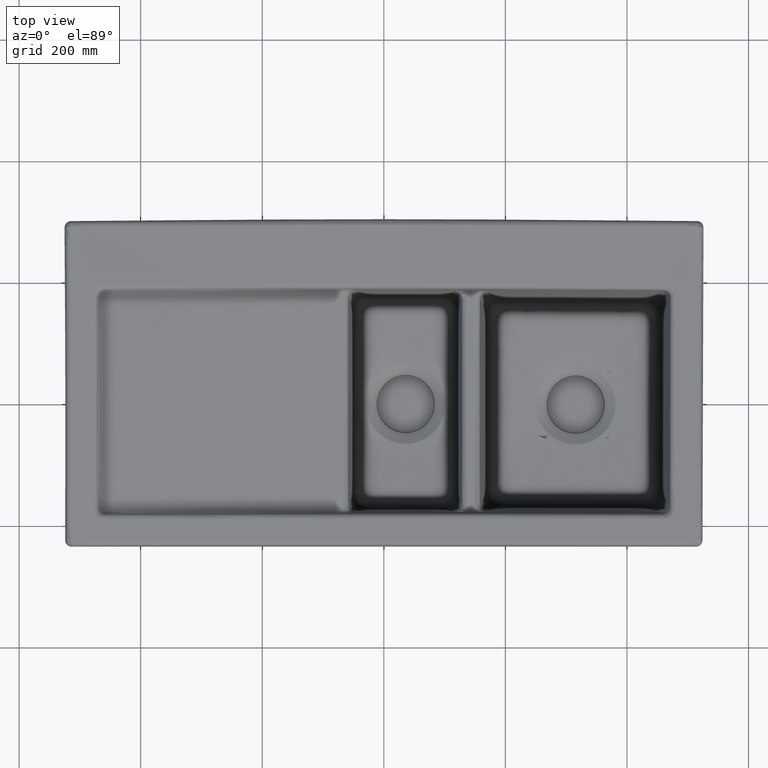
[diagram: clean part render]
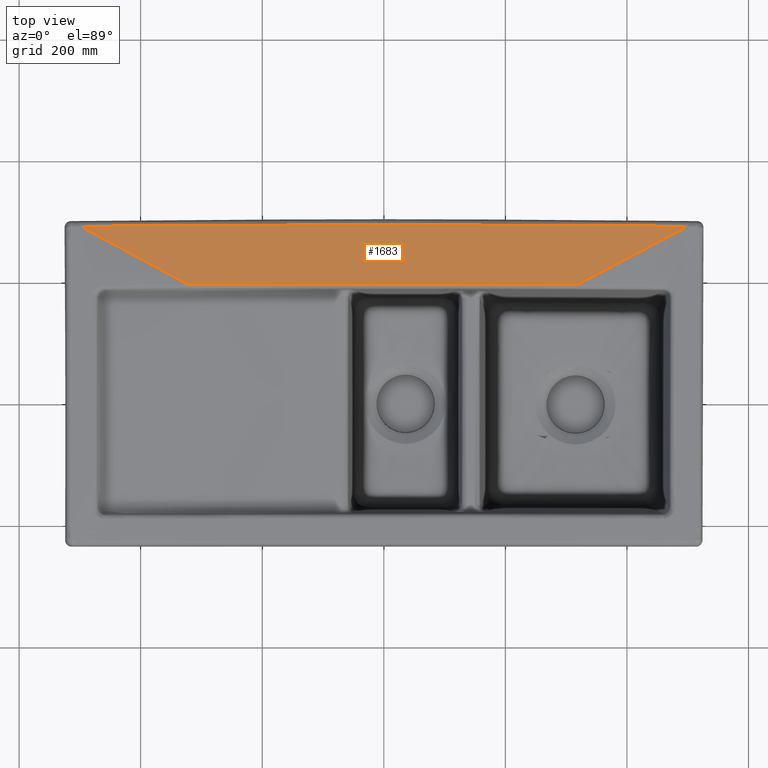
[diagram: same view with one face highlighted and labeled with its STEP entity id]
A machine part, top view. The second image highlights one B-rep face of the part: STEP entity #1683.
In plain terms, the highlighted face is a freeform B-spline surface patch.
Its self-contained STEP definition (entity closure, byte-faithful):
#233=B_SPLINE_SURFACE_WITH_KNOTS('',3,1,((#27506,#27507),(#27508,#27509),
(#27510,#27511),(#27512,#27513)),.UNSPECIFIED.,.F.,.F.,.F.,(4,4),(2,2),
(0.,1.),(0.,1.),.UNSPECIFIED.);
#1208=B_SPLINE_CURVE_WITH_KNOTS('',3,(#25962,#25963,#25964,#25965,#25966,
#25967,#25968,#25969,#25970,#25971,#25972,#25973,#25974,#25975),
 .UNSPECIFIED.,.F.,.F.,(4,2,2,1,1,2,2,4),(0.,0.249999999999994,0.374999999999992,
0.43749999999999,0.46874999999999,0.48437499999999,0.49999999999999,1.),
 .UNSPECIFIED.);
#1210=B_SPLINE_CURVE_WITH_KNOTS('',3,(#26025,#26026,#26027,#26028),
 .UNSPECIFIED.,.F.,.F.,(4,4),(0.,1.),.UNSPECIFIED.);
#1236=B_SPLINE_CURVE_WITH_KNOTS('',3,(#26708,#26709,#26710,#26711),
 .UNSPECIFIED.,.F.,.F.,(4,4),(0.,1.),.UNSPECIFIED.);
#1269=B_SPLINE_CURVE_WITH_KNOTS('',3,(#27489,#27490,#27491,#27492),
 .UNSPECIFIED.,.F.,.F.,(4,4),(0.,1.),.UNSPECIFIED.);
#1270=B_SPLINE_CURVE_WITH_KNOTS('',3,(#27494,#27495,#27496,#27497,#27498,
#27499,#27500),.UNSPECIFIED.,.F.,.F.,(4,3,4),(0.,0.524509839778318,1.),
 .UNSPECIFIED.);
#1271=B_SPLINE_CURVE_WITH_KNOTS('',3,(#27502,#27503,#27504,#27505),
 .UNSPECIFIED.,.F.,.F.,(4,4),(0.,1.),.UNSPECIFIED.);
#1683=ADVANCED_FACE('',(#2077),#233,.F.);
#2077=FACE_OUTER_BOUND('',#2487,.T.);
#2487=EDGE_LOOP('',(#4240,#4241,#4242,#4243,#4244,#4245));
#4240=ORIENTED_EDGE('',*,*,#5758,.T.);
#4241=ORIENTED_EDGE('',*,*,#5760,.T.);
#4242=ORIENTED_EDGE('',*,*,#5827,.F.);
#4243=ORIENTED_EDGE('',*,*,#5828,.F.);
#4244=ORIENTED_EDGE('',*,*,#5829,.F.);
#4245=ORIENTED_EDGE('',*,*,#5791,.T.);
#4840=VERTEX_POINT('',#24117);
#4883=VERTEX_POINT('',#25976);
#4884=VERTEX_POINT('',#26029);
#4901=VERTEX_POINT('',#26697);
#4919=VERTEX_POINT('',#27493);
#4920=VERTEX_POINT('',#27501);
#5758=EDGE_CURVE('',#4883,#4840,#1208,.T.);
#5760=EDGE_CURVE('',#4840,#4884,#1210,.T.);
#5791=EDGE_CURVE('',#4901,#4883,#1236,.T.);
#5827=EDGE_CURVE('',#4919,#4884,#1269,.T.);
#5828=EDGE_CURVE('',#4920,#4919,#1270,.T.);
#5829=EDGE_CURVE('',#4901,#4920,#1271,.T.);
#24117=CARTESIAN_POINT('',(499.08250376496,289.53557961454,-0.0801200516222219));
#25962=CARTESIAN_POINT('',(318.624146316854,193.900655174319,-0.981208514046513));
#25963=CARTESIAN_POINT('',(333.396850165145,201.729553887878,-0.90771814447743));
#25964=CARTESIAN_POINT('',(348.302584278535,209.628999317122,-0.833496665378091));
#25965=CARTESIAN_POINT('',(370.860159625945,221.583545979832,-0.721067782433697));
#25966=CARTESIAN_POINT('',(378.412509117079,225.585958351986,-0.683408710736334));
#25967=CARTESIAN_POINT('',(389.790656636266,231.615870603105,-0.626645937116445));
#25968=CARTESIAN_POINT('',(395.492135780334,234.637400190641,-0.598196008788038));
#25969=CARTESIAN_POINT('',(402.165541484878,238.17401074161,-0.564884478080923));
#25970=CARTESIAN_POINT('',(405.030214780576,239.692162562101,-0.550582404708451));
#25971=CARTESIAN_POINT('',(406.941028204905,240.70481066893,-0.541041977333598));
#25972=CARTESIAN_POINT('',(407.92963754297,241.228730879714,-0.536105686742481));
#25973=CARTESIAN_POINT('',(438.413411619567,257.383820595773,-0.383886439115526));
#25974=CARTESIAN_POINT('',(468.49098213265,273.323643006569,-0.233427809594995));
#25975=CARTESIAN_POINT('',(499.082623763513,289.535899490232,-0.0801170937073426));
#25976=CARTESIAN_POINT('',(318.624146245888,193.900655148922,-0.981208464271422));
#26025=CARTESIAN_POINT('',(499.082383890573,289.535259805991,-0.0801230407785722));
#26026=CARTESIAN_POINT('',(166.506639761785,293.327151372744,-0.0801230407785722));
#26027=CARTESIAN_POINT('',(-166.134005730904,293.325833902097,-0.0801230407785722));
#26028=CARTESIAN_POINT('',(-498.709708449094,289.531307507042,-0.0801230407785722));
#26029=CARTESIAN_POINT('',(-498.709908461585,289.531640514511,-0.0801199186705016));
#26697=CARTESIAN_POINT('',(162.116322627193,194.746945362767,-0.981341075368261));
#26708=CARTESIAN_POINT('',(162.116322627193,194.746945362767,-0.981341075368261));
#26709=CARTESIAN_POINT('',(214.286095276131,194.55696161184,-0.981310044274486));
#26710=CARTESIAN_POINT('',(266.455369826953,194.274862589409,-0.981265836891179));
#26711=CARTESIAN_POINT('',(318.62414631685,193.900655173764,-0.981208454033593));
#27489=CARTESIAN_POINT('',(-321.496553667105,193.794173967888,-0.981950565759075));
#27490=CARTESIAN_POINT('',(-380.567741378579,225.706758010667,-0.68241738828046));
#27491=CARTESIAN_POINT('',(-439.638924762806,257.619339715697,-0.381781381995485));
#27492=CARTESIAN_POINT('',(-498.710104082104,289.531919224693,-0.0801172758243577));
#27493=CARTESIAN_POINT('',(-321.496553718393,193.79417397942,-0.98195058795609));
#27494=CARTESIAN_POINT('',(-241.970108078916,194.376302063467,-0.981319588256153));
#27495=CARTESIAN_POINT('',(-255.874411866639,194.300160222656,-0.981309830759868));
#27496=CARTESIAN_POINT('',(-269.778648468934,194.210563374104,-0.981363139523966));
#27497=CARTESIAN_POINT('',(-283.682778964231,194.107526693581,-0.981479378173174));
#27498=CARTESIAN_POINT('',(-296.287457253894,194.014119614983,-0.981584753390889));
#27499=CARTESIAN_POINT('',(-308.892058525271,193.909666951932,-0.981741849425696));
#27500=CARTESIAN_POINT('',(-321.496553795604,193.794174026206,-0.981950620978548));
#27501=CARTESIAN_POINT('',(-242.082458227534,194.375686383654,-0.981319510765606));
#27502=CARTESIAN_POINT('',(162.116322627193,194.746945362767,-0.981341075368259));
#27503=CARTESIAN_POINT('',(27.4209546830902,195.237457970646,-0.981421193497619));
#27504=CARTESIAN_POINT('',(-107.275868468899,195.113905866374,-0.981414111402556));
#27505=CARTESIAN_POINT('',(-241.970108078916,194.376302063468,-0.981319588256155));
#27506=CARTESIAN_POINT('',(-514.393766374988,298.004851806731,0.));
#27507=CARTESIAN_POINT('',(-471.423792657074,185.037112044869,-1.050420168));
#27508=CARTESIAN_POINT('',(-171.264835000653,302.040151174145,0.));
#27509=CARTESIAN_POINT('',(-157.074556219463,188.434121080493,-1.050420168));
#27510=CARTESIAN_POINT('',(171.935273692907,302.04035188178,0.));
#27511=CARTESIAN_POINT('',(157.329706890591,188.435800678946,-1.050420168));
#27512=CARTESIAN_POINT('',(515.06420978657,298.005453846389,0.));
#27513=CARTESIAN_POINT('',(471.678979605138,185.042150252501,-1.050420168));